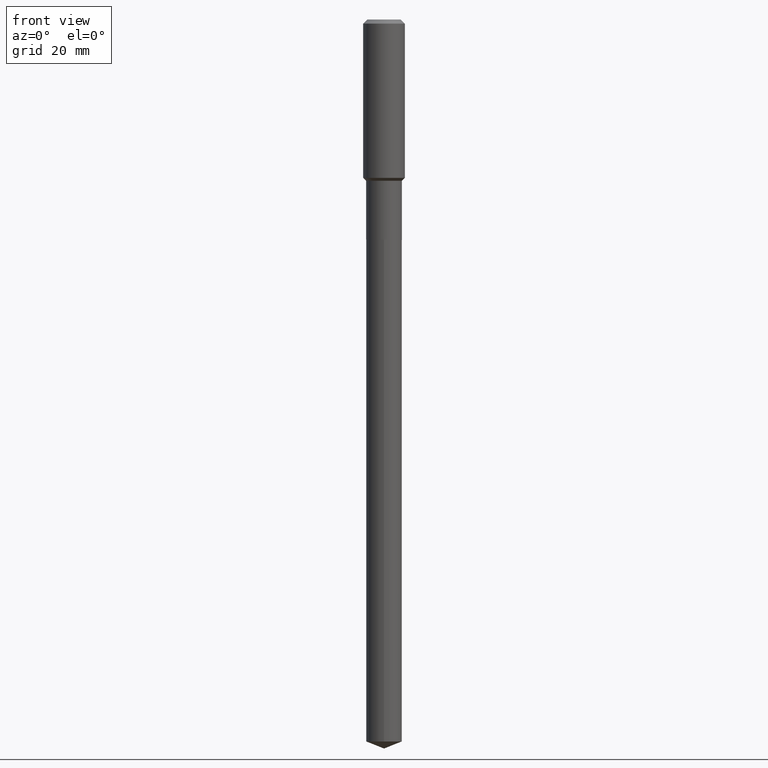
[diagram: clean part render]
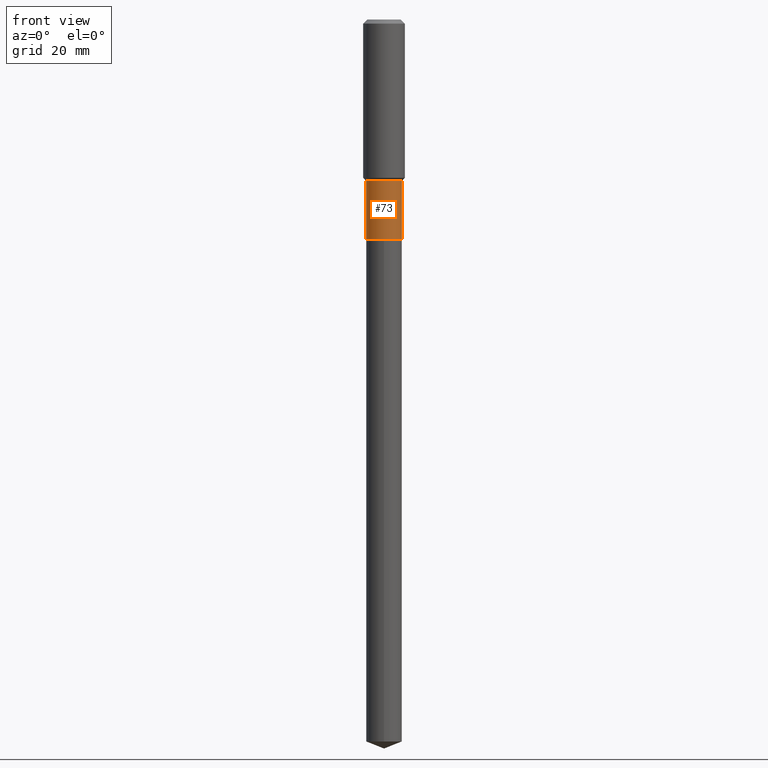
[diagram: same view with one face highlighted and labeled with its STEP entity id]
A machine part, front view. The second image highlights one B-rep face of the part: STEP entity #73.
In plain terms, the highlighted cylindrical surface (edge-blend (fillet) strip) has radius 5.1498 mm, axis along (-0, 0, 1).
Its self-contained STEP definition (entity closure, byte-faithful):
#7 = AXIS2_PLACEMENT_3D ( 'NONE', #429, #91, #95 ) ;
#23 = LINE ( 'NONE', #288, #122 ) ;
#26 = LINE ( 'NONE', #114, #456 ) ;
#33 = ORIENTED_EDGE ( 'NONE', *, *, #63, .T. ) ;
#34 = CARTESIAN_POINT ( 'NONE',  ( 0.2027500000000000135, -1.013681777106329942E-14, -2.497799999999999798 ) ) ;
#54 = AXIS2_PLACEMENT_3D ( 'NONE', #318, #316, #159 ) ;
#63 = EDGE_CURVE ( 'NONE', #303, #240, #292, .T. ) ;
#73 = ADVANCED_FACE ( 'NONE', ( #287 ), #172, .T. ) ;
#91 = DIRECTION ( 'NONE',  ( -2.445468806185136597E-29, 3.491481338843145583E-15, 1.000000000000000000 ) ) ;
#95 = DIRECTION ( 'NONE',  ( 1.000000000000000000, -6.982962677686266711E-15, 4.876176775795935793E-29 ) ) ;
#107 = EDGE_CURVE ( 'NONE', #303, #486, #26, .T. ) ;
#114 = CARTESIAN_POINT ( 'NONE',  ( -0.2027499999999999858, 1.440625396753603026E-15, -9.973140895491819537E-30 ) ) ;
#121 = ORIENTED_EDGE ( 'NONE', *, *, #107, .F. ) ;
#122 = VECTOR ( 'NONE', #132, 39.37007874015748143 ) ;
#132 = DIRECTION ( 'NONE',  ( -2.445468806185136877E-29, 3.491481338843145188E-15, 1.000000000000000000 ) ) ;
#152 = ORIENTED_EDGE ( 'NONE', *, *, #294, .F. ) ;
#159 = DIRECTION ( 'NONE',  ( 1.000000000000000000, -6.982962677686264344E-15, 0.000000000000000000 ) ) ;
#172 = CYLINDRICAL_SURFACE ( 'NONE', #7, 0.2027499999999999858 ) ;
#174 = DIRECTION ( 'NONE',  ( -2.445468806185136597E-29, 3.491481338843145583E-15, 1.000000000000000000 ) ) ;
#203 = CARTESIAN_POINT ( 'NONE',  ( 6.108291984089233838E-29, -8.721022088162408749E-15, -2.497799999999999798 ) ) ;
#220 = CIRCLE ( 'NONE', #54, 0.2027499999999999303 ) ;
#240 = VERTEX_POINT ( 'NONE', #34 ) ;
#277 = CARTESIAN_POINT ( 'NONE',  ( -0.2027500000000000135, -6.113194479833541106E-15, -2.497799999999999798 ) ) ;
#287 = FACE_OUTER_BOUND ( 'NONE', #317, .T. ) ;
#288 = CARTESIAN_POINT ( 'NONE',  ( 0.2027499999999999858, -1.415795682900890473E-15, 9.886448412926258951E-30 ) ) ;
#291 = VERTEX_POINT ( 'NONE', #388 ) ;
#292 = CIRCLE ( 'NONE', #321, 0.2027500000000000135 ) ;
#294 = EDGE_CURVE ( 'NONE', #486, #291, #220, .T. ) ;
#303 = VERTEX_POINT ( 'NONE', #277 ) ;
#315 = ORIENTED_EDGE ( 'NONE', *, *, #481, .T. ) ;
#316 = DIRECTION ( 'NONE',  ( -2.445468806185136597E-29, 3.491481338843145583E-15, 1.000000000000000000 ) ) ;
#317 = EDGE_LOOP ( 'NONE', ( #121, #33, #315, #152 ) ) ;
#318 = CARTESIAN_POINT ( 'NONE',  ( 4.473251540273852813E-29, -6.386617665011882669E-15, -1.829200000000000159 ) ) ;
#321 = AXIS2_PLACEMENT_3D ( 'NONE', #203, #174, #392 ) ;
#325 = CARTESIAN_POINT ( 'NONE',  ( -0.2027499999999999303, -6.113194479833541894E-15, -1.829200000000000159 ) ) ;
#388 = CARTESIAN_POINT ( 'NONE',  ( 0.2027499999999999303, -7.802413347912771762E-15, -1.829200000000000159 ) ) ;
#392 = DIRECTION ( 'NONE',  ( 1.000000000000000000, -6.982962677686271444E-15, 0.000000000000000000 ) ) ;
#429 = CARTESIAN_POINT ( 'NONE',  ( 0.000000000000000000, 0.000000000000000000, 0.000000000000000000 ) ) ;
#450 = DIRECTION ( 'NONE',  ( -2.445468806185136877E-29, 3.491481338843145188E-15, 1.000000000000000000 ) ) ;
#456 = VECTOR ( 'NONE', #450, 39.37007874015748143 ) ;
#481 = EDGE_CURVE ( 'NONE', #240, #291, #23, .T. ) ;
#486 = VERTEX_POINT ( 'NONE', #325 ) ;